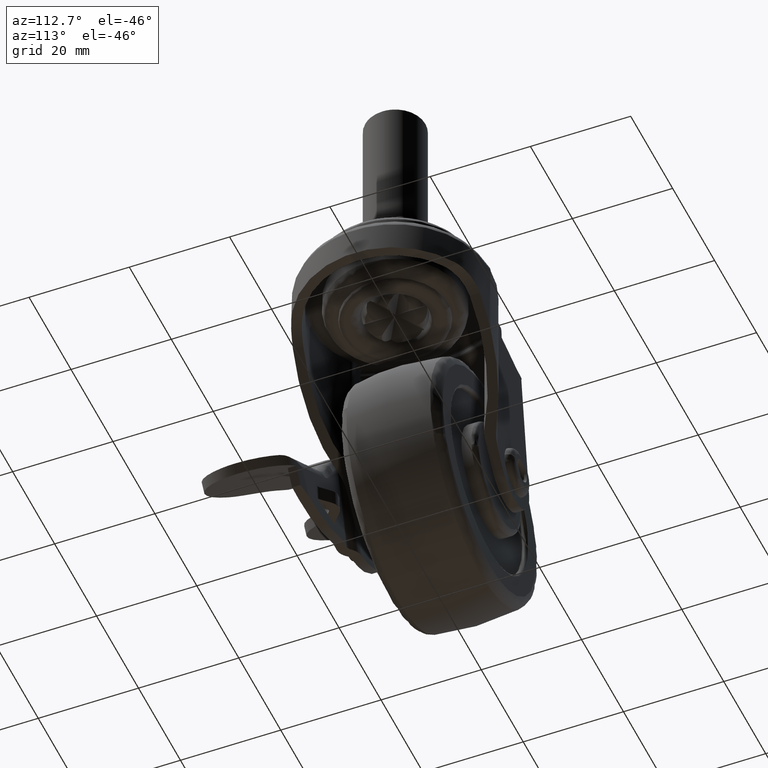
[diagram: clean part render]
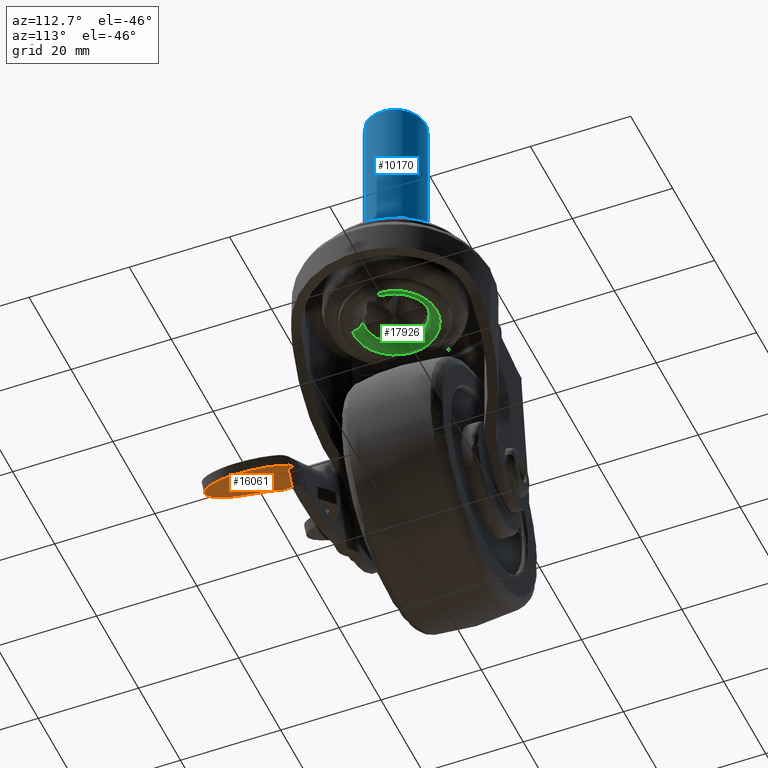
[diagram: same view with three faces highlighted in distinct colors, each labeled with its STEP entity id]
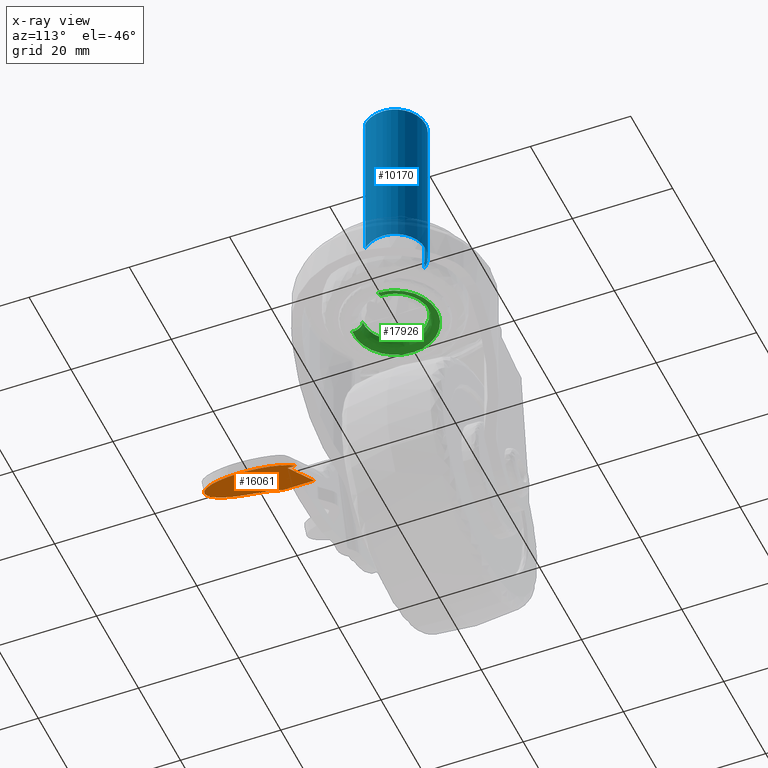
[diagram: x-ray of the same camera — body ghosted, the three highlighted faces saturated]
A machine part, auxiliary view with three faces highlighted in distinct colors.
The next image is the same camera in x-ray (body ghosted, the three faces saturated) — at least one of them is partly hidden behind the body in this view.
Their STEP definitions:

[orange] entity #16061 — the highlighted face is a freeform B-spline surface patch.
#14757=CARTESIAN_POINT('',(36.999814945577000,-25.951586629943701,6.001291245397500));
#14758=VERTEX_POINT('',#14757);
#14764=CARTESIAN_POINT('',(29.999772349777999,-16.824287622280298,6.001047502128801));
#14765=VERTEX_POINT('',#14764);
#14766=CARTESIAN_POINT('',(29.999772349777999,-16.824287622280298,6.001047502128801));
#14767=CARTESIAN_POINT('',(30.744813338745470,-17.027307128447340,6.001073444646073));
#14768=CARTESIAN_POINT('',(31.944763259486368,-17.518380501443481,6.001115227208371));
#14769=CARTESIAN_POINT('',(33.391846844599172,-18.490313434243522,6.001165615027904));
#14770=CARTESIAN_POINT('',(34.412513838434919,-19.429464234437141,6.001201154912972));
#14771=CARTESIAN_POINT('',(35.192274906789727,-20.374616617923309,6.001228306392274));
#14772=CARTESIAN_POINT('',(35.850895228196833,-21.406946284622780,6.001251239719808));
#14773=CARTESIAN_POINT('',(36.442843785346263,-22.661312521892508,6.001271851519646));
#14774=CARTESIAN_POINT('',(36.886662974544691,-24.214617474047920,6.001287305417062));
#14775=CARTESIAN_POINT('',(36.997557797819070,-25.372452546988018,6.001291166802932));
#14776=CARTESIAN_POINT('',(36.999814945577000,-25.951586629943701,6.001291245397500));
#14777=B_SPLINE_CURVE_WITH_KNOTS('',3,(#14766,#14767,#14768,#14769,#14770,#14771,#14772,#14773,#14774,#14775,#14776),.UNSPECIFIED.,.F.,.U.,(4,1,1,1,1,1,1,1,4),(0.000000056574503,2.316573028196739,3.860959079517256,5.212315933037705,6.467077544054452,7.528846592536058,8.880200807106336,10.617647451490260,12.355062611012549),.UNSPECIFIED.);
#14778=EDGE_CURVE('',#14765,#14758,#14777,.T.);
#14827=CARTESIAN_POINT('',(14.568563252854460,-24.832572682271149,6.000510184412629));
#14828=VERTEX_POINT('',#14827);
#14834=CARTESIAN_POINT('',(17.499467111920300,-27.877431602435951,6.000612238311960));
#14835=VERTEX_POINT('',#14834);
#14836=CARTESIAN_POINT('',(14.568563252854460,-24.832572682271149,6.000510184412629));
#14837=CARTESIAN_POINT('',(15.305190871741440,-25.327048497413340,6.000535833785317));
#14838=CARTESIAN_POINT('',(16.377033605098951,-26.276679229968838,6.000573155311743));
#14839=CARTESIAN_POINT('',(17.219714260600210,-27.424578544986701,6.000602497359662));
#14840=CARTESIAN_POINT('',(17.499467111920300,-27.877431602435951,6.000612238311960));
#14841=B_SPLINE_CURVE_WITH_KNOTS('',3,(#14836,#14837,#14838,#14839,#14840),.UNSPECIFIED.,.F.,.U.,(4,1,4),(5.374307E-009,2.661487799018979,4.258380581923430),.UNSPECIFIED.);
#14842=EDGE_CURVE('',#14828,#14835,#14841,.T.);
#14857=CARTESIAN_POINT('',(19.417920088381649,-30.982646303283101,6.000679039333990));
#14858=VERTEX_POINT('',#14857);
#14872=CARTESIAN_POINT('',(19.417920088381649,-30.982646303283101,6.000679039333990));
#14873=CARTESIAN_POINT('',(17.499467111920300,-27.877431602435951,6.000612238311960));
#14874=QUASI_UNIFORM_CURVE('',1,(#14872,#14873),.UNSPECIFIED.,.F.,.U.);
#14875=EDGE_CURVE('',#14858,#14835,#14874,.T.);
#14898=CARTESIAN_POINT('',(36.999814945577000,-26.027357370056301,6.001291245397500));
#14899=VERTEX_POINT('',#14898);
#14928=CARTESIAN_POINT('',(36.999814945577000,-26.027357370056301,6.001291245397500));
#14929=CARTESIAN_POINT('',(36.998049605582700,-26.474859027562200,6.001291183927904));
#14930=CARTESIAN_POINT('',(36.926334050943112,-27.433543352091831,6.001288686774020));
#14931=CARTESIAN_POINT('',(36.624449739358887,-28.746213364133329,6.001278175085298));
#14932=CARTESIAN_POINT('',(36.095313024149462,-30.121060093471261,6.001259750409851));
#14933=CARTESIAN_POINT('',(35.283705795919857,-31.542723599911540,6.001231490039219));
#14934=CARTESIAN_POINT('',(34.208019205068872,-32.779939304841960,6.001194034357721));
#14935=CARTESIAN_POINT('',(32.996302970416728,-33.777040988070759,6.001151842089288));
#14936=CARTESIAN_POINT('',(31.873468799005430,-34.461239485883532,6.001112744717185));
#14937=CARTESIAN_POINT('',(30.398754610799809,-35.086381262943547,6.001061394792949));
#14938=CARTESIAN_POINT('',(28.864875265219450,-35.444361624584637,6.001007984722847));
#14939=CARTESIAN_POINT('',(27.231782953917101,-35.522079250585257,6.000951120032100));
#14940=CARTESIAN_POINT('',(25.892617015277359,-35.382519769103673,6.000904489932459));
#14941=CARTESIAN_POINT('',(24.617269106369250,-35.070268831517062,6.000860081992948));
#14942=CARTESIAN_POINT('',(23.183834858886240,-34.512226634375132,6.000810169447119));
#14943=CARTESIAN_POINT('',(21.678522288367279,-33.583050153247747,6.000757754078547));
#14944=CARTESIAN_POINT('',(20.351790839174651,-32.321958907161203,6.000711556952862));
#14945=CARTESIAN_POINT('',(19.686715277107108,-31.417764372512821,6.000688398849811));
#14946=CARTESIAN_POINT('',(19.417920088381649,-30.982646303283101,6.000679039333990));
#14947=B_SPLINE_CURVE_WITH_KNOTS('',3,(#14928,#14929,#14930,#14931,#14932,#14933,#14934,#14935,#14936,#14937,#14938,#14939,#14940,#14941,#14942,#14943,#14944,#14945,#14946),.UNSPECIFIED.,.F.,.U.,(4,1,1,1,1,1,1,1,1,1,1,1,1,1,1,1,4),(0.000000153969712,1.342520319538195,2.876905632227235,4.027693599333965,5.753881162491126,7.767759504705239,8.918548230586207,10.452913868121170,11.699580648160159,13.713400135901960,15.151850235361790,16.590335516672852,17.741124551728991,19.083706706915699,21.193491897869389,23.015541113199841,24.549890157254069),.UNSPECIFIED.);
#14948=EDGE_CURVE('',#14899,#14858,#14947,.T.);
#15864=CARTESIAN_POINT('',(14.568598073109539,-18.489471000000002,6.000510184704640));
#15865=VERTEX_POINT('',#15864);
#15874=CARTESIAN_POINT('',(14.568598073109539,-18.489471000000002,6.000510184704640));
#15875=CARTESIAN_POINT('',(14.568563252854460,-24.832572682271149,6.000510184412629));
#15876=QUASI_UNIFORM_CURVE('',1,(#15874,#15875),.UNSPECIFIED.,.F.,.U.);
#15877=EDGE_CURVE('',#15865,#14828,#15876,.T.);
#16027=CARTESIAN_POINT('',(36.999814945577000,-25.951586629943701,6.001291245397500));
#16028=CARTESIAN_POINT('',(36.999814945577000,-26.027357370056301,6.001291245397500));
#16029=QUASI_UNIFORM_CURVE('',1,(#16027,#16028),.UNSPECIFIED.,.F.,.U.);
#16030=EDGE_CURVE('',#14758,#14899,#16029,.T.);
#16036=CARTESIAN_POINT('',(38.120254029035493,-36.420487593095217,6.001330259372083));
#16037=CARTESIAN_POINT('',(13.448121762783780,-36.420487593095217,6.000471169433696));
#16038=CARTESIAN_POINT('',(38.120254029035493,-15.892023535439410,6.001330259372083));
#16039=CARTESIAN_POINT('',(13.448121762783780,-15.892023535439410,6.000471169433696));
#16040=B_SPLINE_SURFACE_WITH_KNOTS('',1,1,((#16036,#16038),(#16037,#16039)),.UNSPECIFIED.,.F.,.F.,.U.,(2,2),(2,2),(0.0,24.672132281208579),(0.0,20.528464057655810),.UNSPECIFIED.);
#16041=ORIENTED_EDGE('',*,*,#14842,.F.);
#16042=ORIENTED_EDGE('',*,*,#15877,.F.);
#16043=CARTESIAN_POINT('',(29.999772349777999,-18.489470999999948,6.001047502129221));
#16044=VERTEX_POINT('',#16043);
#16045=CARTESIAN_POINT('',(14.568598073109539,-18.489471000000002,6.000510184704640));
#16046=CARTESIAN_POINT('',(29.999772349777999,-18.489470999999948,6.001047502129221));
#16047=QUASI_UNIFORM_CURVE('',1,(#16045,#16046),.UNSPECIFIED.,.F.,.U.);
#16048=EDGE_CURVE('',#15865,#16044,#16047,.T.);
#16049=ORIENTED_EDGE('',*,*,#16048,.T.);
#16050=CARTESIAN_POINT('',(29.999772349777999,-16.824287622280298,6.001047502128801));
#16051=CARTESIAN_POINT('',(29.999772349777999,-18.489470999999948,6.001047502129221));
#16052=QUASI_UNIFORM_CURVE('',1,(#16050,#16051),.UNSPECIFIED.,.F.,.U.);
#16053=EDGE_CURVE('',#14765,#16044,#16052,.T.);
#16054=ORIENTED_EDGE('',*,*,#16053,.F.);
#16055=ORIENTED_EDGE('',*,*,#14778,.T.);
#16056=ORIENTED_EDGE('',*,*,#16030,.T.);
#16057=ORIENTED_EDGE('',*,*,#14948,.T.);
#16058=ORIENTED_EDGE('',*,*,#14875,.T.);
#16059=EDGE_LOOP('',(#16041,#16042,#16049,#16054,#16055,#16056,#16057,#16058));
#16060=FACE_OUTER_BOUND('',#16059,.T.);
#16061=ADVANCED_FACE('',(#16060),#16040,.T.);

[blue] entity #10170 — the highlighted face is a freeform B-spline surface patch.
#10051=CARTESIAN_POINT('',(16.418666142357363,3.874452230292036,76.824999999999989));
#10052=CARTESIAN_POINT('',(16.529551300611065,4.005568037023619,76.824999999999989));
#10053=CARTESIAN_POINT('',(16.647753773926421,4.130127454162399,76.825000000000003));
#10054=CARTESIAN_POINT('',(20.777881228088813,8.482373680235977,76.825000000000003));
#10055=CARTESIAN_POINT('',(25.130127454162380,4.352246226073593,76.825000000000003));
#10056=CARTESIAN_POINT('',(29.482373680235959,0.222118771911208,76.825000000000003));
#10057=CARTESIAN_POINT('',(25.352246226073579,-4.130127454162371,76.825000000000003));
#10058=CARTESIAN_POINT('',(16.418666142357363,3.874452230292036,42.154375000000002));
#10059=CARTESIAN_POINT('',(16.529551300611065,4.005568037023619,42.154374999999995));
#10060=CARTESIAN_POINT('',(16.647753773926421,4.130127454162399,42.154375000000002));
#10061=CARTESIAN_POINT('',(20.777881228088813,8.482373680235977,42.154374999999995));
#10062=CARTESIAN_POINT('',(25.130127454162380,4.352246226073593,42.154375000000002));
#10063=CARTESIAN_POINT('',(29.482373680235959,0.222118771911208,42.154374999999995));
#10064=CARTESIAN_POINT('',(25.352246226073579,-4.130127454162371,42.154375000000002));
#10072=(BOUNDED_SURFACE()B_SPLINE_SURFACE(2,1,((#10051,#10058),(#10052,#10059),(#10053,#10060),(#10054,#10061),(#10055,#10062),(#10056,#10063),(#10057,#10064)),.UNSPECIFIED.,.F.,.F.,.U.)B_SPLINE_SURFACE_WITH_KNOTS((3,2,2,3),(2,2),(0.0,0.397645019878158,10.338770516832099,20.279896013786050),(0.0,34.670625000000022),.UNSPECIFIED.)GEOMETRIC_REPRESENTATION_ITEM()RATIONAL_B_SPLINE_SURFACE(((0.977505800795127,0.977505800795127),(0.988284271247462,0.988284271247462),(1.0,1.0),(0.707106781186548,0.707106781186548),(1.0,1.0),(0.707106781186548,0.707106781186548),(1.0,1.0)))REPRESENTATION_ITEM('')SURFACE());
#10073=CARTESIAN_POINT('',(16.418666371278931,3.874452104350920,43.000000000000178));
#10074=VERTEX_POINT('',#10073);
#10075=CARTESIAN_POINT('',(21.000001038899239,5.999999999999723,42.999999999999993));
#10076=VERTEX_POINT('',#10075);
#10077=CARTESIAN_POINT('',(16.418666371278931,3.874452104350920,43.000000000000178));
#10078=CARTESIAN_POINT('',(16.821664716644971,4.351521171038403,43.000000000000192));
#10079=CARTESIAN_POINT('',(17.591354197285849,5.015921457840799,43.000000000000057));
#10080=CARTESIAN_POINT('',(18.739106421966081,5.586686447376623,43.000000000000149));
#10081=CARTESIAN_POINT('',(19.805441118493320,5.914967910069304,42.999999999999908));
#10082=CARTESIAN_POINT('',(20.538438704172609,6.000097220851711,43.000000000000107));
#10083=CARTESIAN_POINT('',(21.000001038899239,5.999999999999723,42.999999999999993));
#10084=B_SPLINE_CURVE_WITH_KNOTS('',3,(#10077,#10078,#10079,#10080,#10081,#10082,#10083),.UNSPECIFIED.,.F.,.U.,(4,1,1,1,4),(0.000000028706829,1.873376923735376,3.013674735698032,3.828186527134589,5.212850635909791),.UNSPECIFIED.);
#10085=EDGE_CURVE('',#10074,#10076,#10084,.T.);
#10086=ORIENTED_EDGE('',*,*,#10085,.F.);
#10087=CARTESIAN_POINT('',(16.418666370880299,3.874452103879564,76.0));
#10088=VERTEX_POINT('',#10087);
#10089=CARTESIAN_POINT('',(16.418666370880299,3.874452103879564,76.0));
#10090=CARTESIAN_POINT('',(16.418666371278931,3.874452104350920,43.000000000000178));
#10091=QUASI_UNIFORM_CURVE('',1,(#10089,#10090),.UNSPECIFIED.,.F.,.U.);
#10092=EDGE_CURVE('',#10088,#10074,#10091,.T.);
#10093=ORIENTED_EDGE('',*,*,#10092,.F.);
#10094=CARTESIAN_POINT('',(21.000001038899239,5.999999999999723,76.0));
#10095=VERTEX_POINT('',#10094);
#10096=CARTESIAN_POINT('',(16.418666370880299,3.874452103879564,76.0));
#10097=CARTESIAN_POINT('',(16.681603075808692,4.185449600872610,75.999999999999957));
#10098=CARTESIAN_POINT('',(17.212207084939550,4.696745024315272,75.999999999999872));
#10099=CARTESIAN_POINT('',(18.007747852932440,5.222179084399910,76.000000000000369));
#10100=CARTESIAN_POINT('',(18.791978969065990,5.599051346983499,75.999999999999659));
#10101=CARTESIAN_POINT('',(19.751126010709989,5.908694148505449,76.000000000000725));
#10102=CARTESIAN_POINT('',(20.538443301912071,6.000087574608876,75.999999999999730));
#10103=CARTESIAN_POINT('',(21.000001038899239,5.999999999999723,76.0));
#10104=B_SPLINE_CURVE_WITH_KNOTS('',3,(#10096,#10097,#10098,#10099,#10100,#10101,#10102,#10103),.UNSPECIFIED.,.F.,.U.,(4,1,1,1,1,4),(0.000000028704727,1.221761223676336,2.199175929154640,2.850759520283765,3.828186527587724,5.212850636527122),.UNSPECIFIED.);
#10105=EDGE_CURVE('',#10088,#10095,#10104,.T.);
#10106=ORIENTED_EDGE('',*,*,#10105,.T.);
#10107=CARTESIAN_POINT('',(26.999999999999801,1.421085E-014,76.0));
#10108=VERTEX_POINT('',#10107);
#10109=CARTESIAN_POINT('',(21.000001038899239,5.999999999999723,76.0));
#10110=CARTESIAN_POINT('',(21.441792265792198,6.000074104731509,75.999999999999872));
#10111=CARTESIAN_POINT('',(22.300795734789389,5.904712034700273,76.000000000000242));
#10112=CARTESIAN_POINT('',(23.423228326468660,5.526254391807003,76.000000000000128));
#10113=CARTESIAN_POINT('',(24.283105463935598,5.046022699381644,75.999999999999886));
#10114=CARTESIAN_POINT('',(25.007183332100549,4.495115579119240,76.000000000000099));
#10115=CARTESIAN_POINT('',(25.609325263876510,3.878020418590953,75.999999999999972));
#10116=CARTESIAN_POINT('',(26.209426531160211,3.036978699841977,76.0));
#10117=CARTESIAN_POINT('',(26.679728916654529,2.058303000817963,76.000000000000028));
#10118=CARTESIAN_POINT('',(26.949333999490840,0.981747403709213,76.000000000000057));
#10119=CARTESIAN_POINT('',(27.000004817564289,0.294519996900364,76.000000000000028));
#10120=CARTESIAN_POINT('',(26.999999999999801,1.421085E-014,76.0));
#10121=B_SPLINE_CURVE_WITH_KNOTS('',3,(#10109,#10110,#10111,#10112,#10113,#10114,#10115,#10116,#10117,#10118,#10119,#10120),.UNSPECIFIED.,.F.,.U.,(4,1,1,1,1,1,1,1,1,4),(0.000000097379155,1.325366279314428,2.577108320967470,3.534314699752908,4.270661311826311,5.301467357429432,6.111413746913325,7.363158814015791,8.541265329041966,9.424836511710517),.UNSPECIFIED.);
#10122=EDGE_CURVE('',#10095,#10108,#10121,.T.);
#10123=ORIENTED_EDGE('',*,*,#10122,.T.);
#10124=CARTESIAN_POINT('',(25.352246084968769,-4.130127320259192,76.000000129684452));
#10125=VERTEX_POINT('',#10124);
#10126=CARTESIAN_POINT('',(26.999999999999801,1.421085E-014,76.0));
#10127=CARTESIAN_POINT('',(27.000003295339621,-0.284703792026989,76.000000008939523));
#10128=CARTESIAN_POINT('',(26.950981494228550,-0.972757005526587,76.000000030544399));
#10129=CARTESIAN_POINT('',(26.715556419662349,-1.921676091437168,76.000000060339914));
#10130=CARTESIAN_POINT('',(26.216635077609030,-3.053473814513688,76.000000095877780));
#10131=CARTESIAN_POINT('',(25.728035068435808,-3.734410454689851,76.000000117259148));
#10132=CARTESIAN_POINT('',(25.352246084968769,-4.130127320259192,76.000000129684452));
#10133=B_SPLINE_CURVE_WITH_KNOTS('',3,(#10126,#10127,#10128,#10129,#10130,#10131,#10132),.UNSPECIFIED.,.F.,.U.,(4,1,1,1,4),(0.000000023840571,0.854120837042025,2.064145465439693,2.918253624193937,4.555335982811875),.UNSPECIFIED.);
#10134=EDGE_CURVE('',#10108,#10125,#10133,.T.);
#10135=ORIENTED_EDGE('',*,*,#10134,.T.);
#10136=CARTESIAN_POINT('',(25.352245983252129,-4.130127333247300,43.0));
#10137=VERTEX_POINT('',#10136);
#10138=CARTESIAN_POINT('',(25.352246084968769,-4.130127320259192,76.000000129684452));
#10139=CARTESIAN_POINT('',(25.352245983252129,-4.130127333247300,43.0));
#10140=QUASI_UNIFORM_CURVE('',1,(#10138,#10139),.UNSPECIFIED.,.F.,.U.);
#10141=EDGE_CURVE('',#10125,#10137,#10140,.T.);
#10142=ORIENTED_EDGE('',*,*,#10141,.T.);
#10143=CARTESIAN_POINT('',(26.999999999999801,1.421085E-014,43.0));
#10144=VERTEX_POINT('',#10143);
#10145=CARTESIAN_POINT('',(26.999999999999801,1.421085E-014,43.0));
#10146=CARTESIAN_POINT('',(27.000044399640469,-0.379611756488317,42.999999999999979));
#10147=CARTESIAN_POINT('',(26.934479553224381,-1.067641045370771,42.999999999999957));
#10148=CARTESIAN_POINT('',(26.695959083578479,-1.939860929944568,43.000000000000149));
#10149=CARTESIAN_POINT('',(26.254657935493150,-2.991496973948983,42.999999999999673));
#10150=CARTESIAN_POINT('',(25.777143640999132,-3.682854832463224,43.000000000000099));
#10151=CARTESIAN_POINT('',(25.352245983252129,-4.130127333247300,43.0));
#10152=B_SPLINE_CURVE_WITH_KNOTS('',3,(#10145,#10146,#10147,#10148,#10149,#10150,#10151),.UNSPECIFIED.,.F.,.U.,(4,1,1,1,4),(0.000000023840679,1.138834203595834,2.064145490285224,2.704720283078905,4.555336037636788),.UNSPECIFIED.);
#10153=EDGE_CURVE('',#10144,#10137,#10152,.T.);
#10154=ORIENTED_EDGE('',*,*,#10153,.F.);
#10155=CARTESIAN_POINT('',(21.000001038899239,5.999999999999723,42.999999999999993));
#10156=CARTESIAN_POINT('',(21.441792467490028,6.000070547986046,42.999999999999851));
#10157=CARTESIAN_POINT('',(22.300792371745271,5.904705494859430,43.000000000000171));
#10158=CARTESIAN_POINT('',(23.423224880551611,5.526252344954802,43.000000000000007));
#10159=CARTESIAN_POINT('',(24.476597411079599,4.938032480189818,42.999999999999972));
#10160=CARTESIAN_POINT('',(25.454801982814580,4.104818011648668,43.000000000000057));
#10161=CARTESIAN_POINT('',(26.251459656814092,3.002447021429104,43.0));
#10162=CARTESIAN_POINT('',(26.844241279333900,1.619724459371384,42.999999999999979));
#10163=CARTESIAN_POINT('',(27.000293622844129,0.613625024567378,43.000000000000043));
#10164=CARTESIAN_POINT('',(26.999999999999801,1.421085E-014,43.0));
#10165=B_SPLINE_CURVE_WITH_KNOTS('',3,(#10155,#10156,#10157,#10158,#10159,#10160,#10161,#10162,#10163,#10164),.UNSPECIFIED.,.F.,.U.,(4,1,1,1,1,1,1,4),(0.000000097379155,1.325366279314428,2.577108320967470,3.534314699752908,4.933285607667123,6.405941941462196,7.584057191931805,9.424836511710517),.UNSPECIFIED.);
#10166=EDGE_CURVE('',#10076,#10144,#10165,.T.);
#10167=ORIENTED_EDGE('',*,*,#10166,.F.);
#10168=EDGE_LOOP('',(#10086,#10093,#10106,#10123,#10135,#10142,#10154,#10167));
#10169=FACE_OUTER_BOUND('',#10168,.T.);
#10170=ADVANCED_FACE('',(#10169),#10072,.T.);

[green] entity #17926 — the highlighted face is a freeform B-spline surface patch.
#16788=CARTESIAN_POINT('',(25.035887960955119,4.772222909368617,27.716472999952639));
#16789=VERTEX_POINT('',#16788);
#16790=CARTESIAN_POINT('',(27.250000000000000,2.066276E-017,27.716472999897150));
#16791=VERTEX_POINT('',#16790);
#16792=CARTESIAN_POINT('',(25.035887960955119,4.772222909368617,27.716472999952639));
#16793=CARTESIAN_POINT('',(25.403056303005510,4.461825925937454,27.716472999947172));
#16794=CARTESIAN_POINT('',(25.967789235554719,3.859548131562947,27.716472999937938));
#16795=CARTESIAN_POINT('',(26.522385788674050,2.968098659484131,27.716472999926228));
#16796=CARTESIAN_POINT('',(26.892637376598859,2.140834201494251,27.716472999916871));
#16797=CARTESIAN_POINT('',(27.171954946045950,1.187801161305995,27.716472999907008));
#16798=CARTESIAN_POINT('',(27.250059702479419,0.424221483341238,27.716472999900539));
#16799=CARTESIAN_POINT('',(27.250000000000000,2.066276E-017,27.716472999897150));
#16800=B_SPLINE_CURVE_WITH_KNOTS('',3,(#16792,#16793,#16794,#16795,#16796,#16797,#16798,#16799),.UNSPECIFIED.,.F.,.U.,(4,1,1,1,1,4),(0.000000029892903,1.442358242392871,2.460511209594073,3.139244006769613,4.157384159576569,5.430051864260555),.UNSPECIFIED.);
#16801=EDGE_CURVE('',#16789,#16791,#16800,.T.);
#16803=CARTESIAN_POINT('',(21.721651433352552,-6.208197742399980,27.716472999784031));
#16804=VERTEX_POINT('',#16803);
#16819=CARTESIAN_POINT('',(14.750000000000000,0.0,27.716472999999901));
#16820=VERTEX_POINT('',#16819);
#16821=CARTESIAN_POINT('',(21.721651433352552,-6.208197742399980,27.716472999784031));
#16822=CARTESIAN_POINT('',(21.176325972885010,-6.271775420985894,27.716472999813760));
#16823=CARTESIAN_POINT('',(20.373496656967099,-6.258592926011247,27.716472999855409));
#16824=CARTESIAN_POINT('',(19.081739529118622,-5.987272238489994,27.716472999915919));
#16825=CARTESIAN_POINT('',(17.982170659362520,-5.533300447835210,27.716472999962502));
#16826=CARTESIAN_POINT('',(16.946228743342790,-4.800557224143624,27.716472999998839));
#16827=CARTESIAN_POINT('',(16.250959386630001,-4.093987404774495,27.716473000018549));
#16828=CARTESIAN_POINT('',(15.693336387975860,-3.343552085385027,27.716473000029779));
#16829=CARTESIAN_POINT('',(15.262176309826909,-2.543122093172890,27.716473000032821));
#16830=CARTESIAN_POINT('',(14.862864755825370,-1.399859752888545,27.716473000027751));
#16831=CARTESIAN_POINT('',(14.749840674992960,-0.549015095662879,27.716473000012570));
#16832=CARTESIAN_POINT('',(14.750000000000000,0.0,27.716472999999901));
#16833=B_SPLINE_CURVE_WITH_KNOTS('',3,(#16821,#16822,#16823,#16824,#16825,#16826,#16827,#16828,#16829,#16830,#16831,#16832),.UNSPECIFIED.,.F.,.U.,(4,1,1,1,1,1,1,1,1,4),(0.000000099143335,1.646997164528132,2.388153969105391,3.952811775635855,5.188083298592481,6.176250223027616,6.917407746302470,7.987965029548980,8.893819183256849,10.540817923032400),.UNSPECIFIED.);
#16834=EDGE_CURVE('',#16804,#16820,#16833,.T.);
#16836=CARTESIAN_POINT('',(16.466410416196190,4.302215977357839,27.716473000023878));
#16837=VERTEX_POINT('',#16836);
#16838=CARTESIAN_POINT('',(14.750000000000000,0.0,27.716472999999901));
#16839=CARTESIAN_POINT('',(14.749911064797200,0.469575329343656,27.716473000004122));
#16840=CARTESIAN_POINT('',(14.856328023945640,1.408675424635532,27.716473000011440));
#16841=CARTESIAN_POINT('',(15.384198680452281,2.910373979589859,27.716473000020510));
#16842=CARTESIAN_POINT('',(16.023832294886901,3.836311339550592,27.716473000023399));
#16843=CARTESIAN_POINT('',(16.466410416196190,4.302215977357839,27.716473000023878));
#16844=B_SPLINE_CURVE_WITH_KNOTS('',3,(#16838,#16839,#16840,#16841,#16842,#16843),.UNSPECIFIED.,.F.,.U.,(4,1,1,4),(0.000000024833836,1.408717279191432,2.817416955011858,4.745141703627898),.UNSPECIFIED.);
#16845=EDGE_CURVE('',#16820,#16837,#16844,.T.);
#16932=CARTESIAN_POINT('',(21.000001015725601,6.249999999999918,27.716472999999912));
#16933=VERTEX_POINT('',#16932);
#16934=CARTESIAN_POINT('',(21.000001015725601,6.249999999999918,27.716472999999912));
#16935=CARTESIAN_POINT('',(21.319920012640448,6.250013199987451,27.716472999997109));
#16936=CARTESIAN_POINT('',(22.028319257143739,6.195514870501590,27.716472999990511));
#16937=CARTESIAN_POINT('',(23.052070834410848,5.937619982498276,27.716472999979509));
#16938=CARTESIAN_POINT('',(24.097794083081411,5.467715844694828,27.716472999966442));
#16939=CARTESIAN_POINT('',(24.721849387012821,5.037876370540759,27.716472999957681));
#16940=CARTESIAN_POINT('',(25.035887960955119,4.772222909368617,27.716472999952639));
#16941=B_SPLINE_CURVE_WITH_KNOTS('',3,(#16934,#16935,#16936,#16937,#16938,#16939,#16940),.UNSPECIFIED.,.F.,.U.,(4,1,1,1,4),(0.000000022085619,0.959761766725902,2.125205743694718,3.153505777315765,4.387488043266496),.UNSPECIFIED.);
#16942=EDGE_CURVE('',#16933,#16789,#16941,.T.);
#16968=CARTESIAN_POINT('',(16.466410416196190,4.302215977357839,27.716473000023878));
#16969=CARTESIAN_POINT('',(16.793684941162340,4.647226780497368,27.716473000023811));
#16970=CARTESIAN_POINT('',(17.384845334256909,5.142371976923409,27.716473000022731));
#16971=CARTESIAN_POINT('',(18.445898317406410,5.740914067823467,27.716473000018290));
#16972=CARTESIAN_POINT('',(19.599851143150509,6.143963169836908,27.716473000011149));
#16973=CARTESIAN_POINT('',(20.524459401067109,6.250095416152773,27.716473000004260));
#16974=CARTESIAN_POINT('',(21.000001015725601,6.249999999999918,27.716472999999912));
#16975=B_SPLINE_CURVE_WITH_KNOTS('',3,(#16968,#16969,#16970,#16971,#16972,#16973,#16974),.UNSPECIFIED.,.F.,.U.,(4,1,1,1,4),(0.000000025424515,1.426612148961000,2.298445825627220,3.645785359940938,5.072397961158313),.UNSPECIFIED.);
#16976=EDGE_CURVE('',#16837,#16933,#16975,.T.);
#17808=CARTESIAN_POINT('',(21.968594012320896,-8.332594927370447,25.721288322234191));
#17809=CARTESIAN_POINT('',(21.485922013973099,-8.388701483802098,25.721288322234184));
#17810=CARTESIAN_POINT('',(20.999999999999996,-8.388701483802098,25.721288322234180));
#17811=CARTESIAN_POINT('',(12.611298516197905,-8.388701483802100,25.721288322234191));
#17812=CARTESIAN_POINT('',(12.611298516197905,-1.540929E-015,25.721288322234180));
#17813=CARTESIAN_POINT('',(12.611298516197900,8.388701483802098,25.721288322234191));
#17814=CARTESIAN_POINT('',(20.999999999999996,8.388701483802098,25.721288322234180));
#17815=CARTESIAN_POINT('',(29.388701483802105,8.388701483802104,25.721288322234191));
#17816=CARTESIAN_POINT('',(29.388701483802102,2.568214E-015,25.721288322234180));
#17817=CARTESIAN_POINT('',(21.703698580751869,-6.053759521309389,25.561801268693234));
#17818=CARTESIAN_POINT('',(21.353029883768965,-6.094521805227732,25.561801268693234));
#17819=CARTESIAN_POINT('',(21.000000000000011,-6.094521805227731,25.561801268693252));
#17820=CARTESIAN_POINT('',(14.905478194772272,-6.094521805227732,25.561801268693234));
#17821=CARTESIAN_POINT('',(14.905478194772272,-1.119509E-015,25.561801268693252));
#17822=CARTESIAN_POINT('',(14.905478194772268,6.094521805227729,25.561801268693234));
#17823=CARTESIAN_POINT('',(21.000000000000011,6.094521805227731,25.561801268693252));
#17824=CARTESIAN_POINT('',(27.094521805227735,6.094521805227732,25.561801268693234));
#17825=CARTESIAN_POINT('',(27.094521805227721,1.865848E-015,25.561801268693252));
#17826=CARTESIAN_POINT('',(21.722212739421316,-6.213032635381039,27.855921104031726));
#17827=CARTESIAN_POINT('',(21.362318024262546,-6.254867366243054,27.855921104031719));
#17828=CARTESIAN_POINT('',(20.999999999999996,-6.254867366243053,27.855921104031719));
#17829=CARTESIAN_POINT('',(14.745132633756945,-6.254867366243054,27.855921104031708));
#17830=CARTESIAN_POINT('',(14.745132633756949,-1.148963E-015,27.855921104031719));
#17831=CARTESIAN_POINT('',(14.745132633756945,6.254867366243049,27.855921104031708));
#17832=CARTESIAN_POINT('',(20.999999999999996,6.254867366243053,27.855921104031719));
#17833=CARTESIAN_POINT('',(27.254867366243047,6.254867366243054,27.855921104031708));
#17834=CARTESIAN_POINT('',(27.254867366243055,1.914938E-015,27.855921104031719));
#17842=(BOUNDED_SURFACE()B_SPLINE_SURFACE(2,2,((#17808,#17817,#17826),(#17809,#17818,#17827),(#17810,#17819,#17828),(#17811,#17820,#17829),(#17812,#17821,#17830),(#17813,#17822,#17831),(#17814,#17823,#17832),(#17815,#17824,#17833),(#17816,#17825,#17834)),.UNSPECIFIED.,.F.,.F.,.U.)B_SPLINE_SURFACE_WITH_KNOTS((3,2,2,2,3),(3,3),(0.0,1.111907395694307,15.010763096854850,28.909618798015391,42.808474499175937),(0.0,3.644740735416708),.UNSPECIFIED.)GEOMETRIC_REPRESENTATION_ITEM()RATIONAL_B_SPLINE_SURFACE(((0.870831711449222,0.569876382682288,0.866007921809745),(0.888744047109173,0.581598299692288,0.883821035842785),(0.910068252354572,0.595552960264535,0.905027120125223),(0.643515432582508,0.421119536758775,0.639950813798278),(0.910068252354572,0.595552960264535,0.905027120125223),(0.643515432582508,0.421119536758775,0.639950813798278),(0.910068252354572,0.595552960264535,0.905027120125223),(0.643515432582508,0.421119536758775,0.639950813798278),(0.910068252354572,0.595552960264535,0.905027120125223)))REPRESENTATION_ITEM('')SURFACE());
#17843=CARTESIAN_POINT('',(21.952579891973070,-8.194821019760420,25.716472999999901));
#17844=VERTEX_POINT('',#17843);
#17845=CARTESIAN_POINT('',(12.750000000000000,0.0,25.716472999999901));
#17846=VERTEX_POINT('',#17845);
#17847=CARTESIAN_POINT('',(21.952579891973070,-8.194821019760420,25.716472999999901));
#17848=CARTESIAN_POINT('',(21.160755933080161,-8.287237786769683,25.716472999999869));
#17849=CARTESIAN_POINT('',(20.062842464857638,-8.254610933077453,25.716472999999990));
#17850=CARTESIAN_POINT('',(18.577948268086349,-7.911771977735565,25.716472999999830));
#17851=CARTESIAN_POINT('',(17.352639639657600,-7.452607890117626,25.716472999999990));
#17852=CARTESIAN_POINT('',(16.167318020215731,-6.737113538751042,25.716472999999979));
#17853=CARTESIAN_POINT('',(15.152297965660109,-5.856827867184871,25.716472999999720));
#17854=CARTESIAN_POINT('',(14.219977889820321,-4.789952070117277,25.716473000000040));
#17855=CARTESIAN_POINT('',(13.430787490402169,-3.433842041814624,25.716472999999780));
#17856=CARTESIAN_POINT('',(12.876411278022950,-1.739171449404324,25.716472999999851));
#17857=CARTESIAN_POINT('',(12.749882066042330,-0.615978040021690,25.716472999999930));
#17858=CARTESIAN_POINT('',(12.750000000000000,0.0,25.716472999999901));
#17859=B_SPLINE_CURVE_WITH_KNOTS('',3,(#17847,#17848,#17849,#17850,#17851,#17852,#17853,#17854,#17855,#17856,#17857,#17858),.UNSPECIFIED.,.F.,.U.,(4,1,1,1,1,1,1,1,1,4),(0.000000039028997,2.391447644838973,3.261064153509970,4.565505145672116,6.304754898792503,7.391722159620350,8.587471911222025,10.544113444722790,12.065954786978310,13.913879658311309),.UNSPECIFIED.);
#17860=EDGE_CURVE('',#17844,#17846,#17859,.T.);
#17861=ORIENTED_EDGE('',*,*,#17860,.T.);
#17862=CARTESIAN_POINT('',(21.000001814699051,8.249999999999799,25.716472999999901));
#17863=VERTEX_POINT('',#17862);
#17864=CARTESIAN_POINT('',(12.750000000000000,0.0,25.716472999999901));
#17865=CARTESIAN_POINT('',(12.749889452825220,0.607460731693203,25.716472999999912));
#17866=CARTESIAN_POINT('',(12.881043221441949,1.788583621443289,25.716472999999940));
#17867=CARTESIAN_POINT('',(13.390556516448941,3.299776366490183,25.716472999999869));
#17868=CARTESIAN_POINT('',(14.157467106810889,4.693129352163409,25.716473000000018));
#17869=CARTESIAN_POINT('',(15.148248680659419,5.900498341471438,25.716472999999780));
#17870=CARTESIAN_POINT('',(16.472052329190198,6.959938232220329,25.716473000000139));
#17871=CARTESIAN_POINT('',(17.736288395952329,7.615830364481552,25.716472999999819));
#17872=CARTESIAN_POINT('',(19.245230519696580,8.114309917813456,25.716472999999890));
#17873=CARTESIAN_POINT('',(20.291275207800481,8.250222126961193,25.716472999999951));
#17874=CARTESIAN_POINT('',(21.000001814699051,8.249999999999799,25.716472999999901));
#17875=B_SPLINE_CURVE_WITH_KNOTS('',3,(#17864,#17865,#17866,#17867,#17868,#17869,#17870,#17871,#17872,#17873,#17874),.UNSPECIFIED.,.F.,.U.,(4,1,1,1,1,1,1,1,4),(0.000000058439579,1.822367141957685,3.543522056310193,4.758443312415821,6.580803017817847,8.200697886381111,9.820608788131359,10.833048748530910,12.959152031515011),.UNSPECIFIED.);
#17876=EDGE_CURVE('',#17846,#17863,#17875,.T.);
#17877=ORIENTED_EDGE('',*,*,#17876,.T.);
#17878=CARTESIAN_POINT('',(29.249999999969798,4.046730E-016,25.716472999999901));
#17879=VERTEX_POINT('',#17878);
#17880=CARTESIAN_POINT('',(21.000001814699051,8.249999999999799,25.716472999999901));
#17881=CARTESIAN_POINT('',(21.674975338424758,8.250178894672429,25.716472999999990));
#17882=CARTESIAN_POINT('',(22.619811576334090,8.133372643424945,25.716472999999819));
#17883=CARTESIAN_POINT('',(23.945469832566289,7.731175681488095,25.716472999999969));
#17884=CARTESIAN_POINT('',(25.211086170881771,7.161059985942851,25.716472999999869));
#17885=CARTESIAN_POINT('',(26.478689040865572,6.244812631699245,25.716472999999880));
#17886=CARTESIAN_POINT('',(27.485713403018028,5.147108905563762,25.716472999999969));
#17887=CARTESIAN_POINT('',(28.130473338700870,4.194838399193725,25.716472999999791));
#17888=CARTESIAN_POINT('',(28.693027005898109,3.077419550163284,25.716472999999912));
#17889=CARTESIAN_POINT('',(29.133355083084950,1.687345293203141,25.716472999999969));
#17890=CARTESIAN_POINT('',(29.250091460370900,0.573710626455490,25.716472999999830));
#17891=CARTESIAN_POINT('',(29.249999999969798,4.046730E-016,25.716472999999901));
#17892=B_SPLINE_CURVE_WITH_KNOTS('',3,(#17880,#17881,#17882,#17883,#17884,#17885,#17886,#17887,#17888,#17889,#17890,#17891),.UNSPECIFIED.,.F.,.U.,(4,1,1,1,1,1,1,1,1,4),(0.000000059081424,2.024863469095235,2.834810210956201,4.150983767467187,6.175876447373566,7.491985561651606,8.605677984366988,9.618117785052919,11.238028430952520,12.959149985896371),.UNSPECIFIED.);
#17893=EDGE_CURVE('',#17863,#17879,#17892,.T.);
#17894=ORIENTED_EDGE('',*,*,#17893,.T.);
#17895=CARTESIAN_POINT('',(29.249999999969798,4.046730E-016,25.716472999999901));
#17896=CARTESIAN_POINT('',(29.037284038156638,4.091921E-016,25.716385289836659));
#17897=CARTESIAN_POINT('',(28.595518486422510,4.033669E-016,25.787559082551091));
#17898=CARTESIAN_POINT('',(28.082980364751950,3.558250E-016,26.061461386923700));
#17899=CARTESIAN_POINT('',(27.701999512339860,2.865236E-016,26.424385882730071));
#17900=CARTESIAN_POINT('',(27.445514582382479,2.101430E-016,26.808164820600972));
#17901=CARTESIAN_POINT('',(27.284469578450320,1.175912E-016,27.258334473665659));
#17902=CARTESIAN_POINT('',(27.249979428285620,5.205270E-017,27.569216330244871));
#17903=CARTESIAN_POINT('',(27.250000000000000,2.066276E-017,27.716472999897150));
#17904=B_SPLINE_CURVE_WITH_KNOTS('',3,(#17895,#17896,#17897,#17898,#17899,#17900,#17901,#17902,#17903),.UNSPECIFIED.,.F.,.U.,(4,1,1,1,1,1,4),(0.000000139747598,0.638151277796774,1.325415946159950,1.718068967306730,2.208987670415752,2.699891138471349,3.141671488676525),.UNSPECIFIED.);
#17905=EDGE_CURVE('',#17879,#16791,#17904,.T.);
#17906=ORIENTED_EDGE('',*,*,#17905,.T.);
#17907=ORIENTED_EDGE('',*,*,#16801,.F.);
#17908=ORIENTED_EDGE('',*,*,#16942,.F.);
#17909=ORIENTED_EDGE('',*,*,#16976,.F.);
#17910=ORIENTED_EDGE('',*,*,#16845,.F.);
#17911=ORIENTED_EDGE('',*,*,#16834,.F.);
#17912=CARTESIAN_POINT('',(21.952579891973070,-8.194821019760420,25.716472999999901));
#17913=CARTESIAN_POINT('',(21.935577187809841,-8.048550750336187,25.716453915568142));
#17914=CARTESIAN_POINT('',(21.899680452751010,-7.739739571935893,25.750934859861470));
#17915=CARTESIAN_POINT('',(21.851289858867482,-7.323446661252784,25.900900692342471));
#17916=CARTESIAN_POINT('',(21.806382073966891,-6.937115538001115,26.147201785152649));
#17917=CARTESIAN_POINT('',(21.763293269576849,-6.566432676710583,26.520150581584961));
#17918=CARTESIAN_POINT('',(21.729858636380438,-6.278802382073608,27.061992207807609));
#17919=CARTESIAN_POINT('',(21.721641372409628,-6.208111190526479,27.503756628097499));
#17920=CARTESIAN_POINT('',(21.721651433352552,-6.208197742399980,27.716472999784031));
#17921=B_SPLINE_CURVE_WITH_KNOTS('',3,(#17912,#17913,#17914,#17915,#17916,#17917,#17918,#17919,#17920),.UNSPECIFIED.,.F.,.U.,(4,1,1,1,1,1,4),(0.000000139750568,0.441780107892143,0.932684466082720,1.325415946100414,1.816255952754773,2.503519631336667,3.141671488529974),.UNSPECIFIED.);
#17922=EDGE_CURVE('',#17844,#16804,#17921,.T.);
#17923=ORIENTED_EDGE('',*,*,#17922,.F.);
#17924=EDGE_LOOP('',(#17861,#17877,#17894,#17906,#17907,#17908,#17909,#17910,#17911,#17923));
#17925=FACE_OUTER_BOUND('',#17924,.T.);
#17926=ADVANCED_FACE('',(#17925),#17842,.T.);